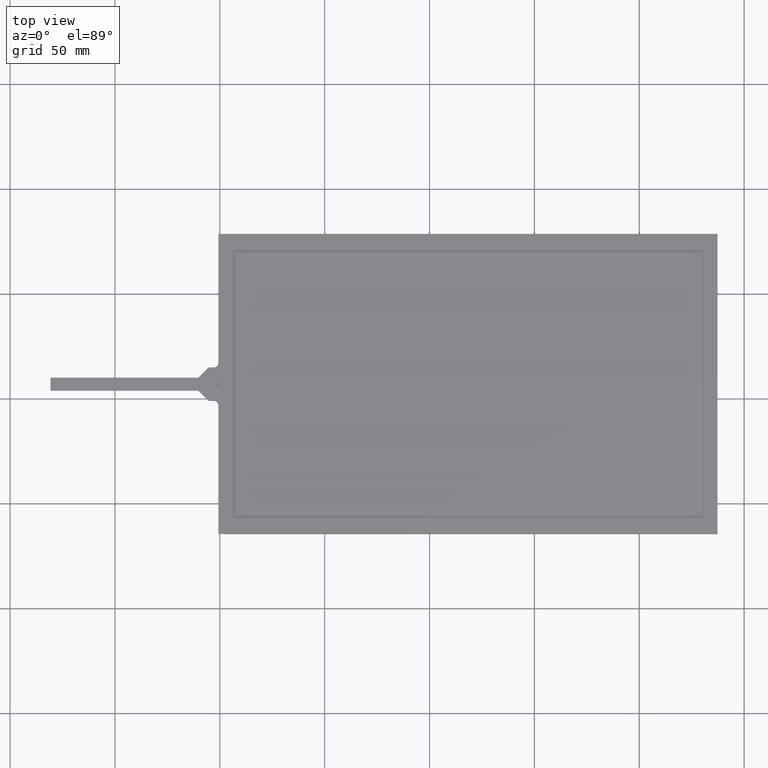
[diagram: clean part render]
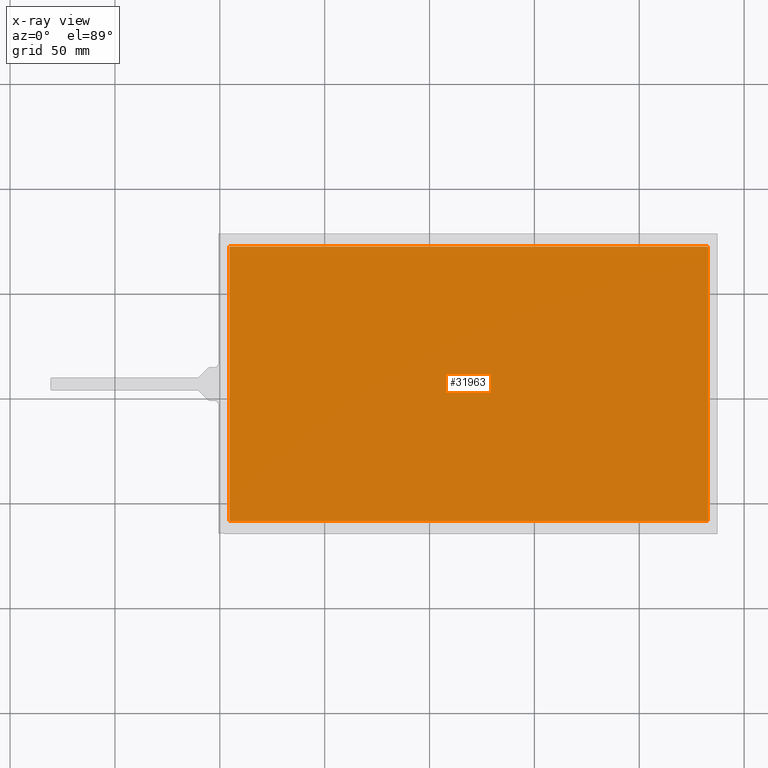
[diagram: x-ray — body ghosted, one internal face saturated and labeled with its STEP entity id]
A machine part, top view, then the same camera in x-ray: the body is ghosted and one INTERNAL B-rep face — a face not visible from any outside direction — is saturated and labeled: STEP entity #31963.
In plain terms, the highlighted planar face has unit normal (0, 0, -1).
Its self-contained STEP definition (entity closure, byte-faithful):
#1930=FACE_OUTER_BOUND('',#3604,.T.);
#3604=EDGE_LOOP('',(#21139,#21140,#21141,#21142));
#5450=LINE('',#45850,#9178);
#5451=LINE('',#45852,#9179);
#5452=LINE('',#45854,#9180);
#5453=LINE('',#45855,#9181);
#9178=VECTOR('',#36537,10.);
#9179=VECTOR('',#36538,10.);
#9180=VECTOR('',#36539,10.);
#9181=VECTOR('',#36540,10.);
#12884=VERTEX_POINT('',#45848);
#12885=VERTEX_POINT('',#45849);
#12886=VERTEX_POINT('',#45851);
#12887=VERTEX_POINT('',#45853);
#16159=EDGE_CURVE('',#12884,#12885,#5450,.T.);
#16160=EDGE_CURVE('',#12885,#12886,#5451,.T.);
#16161=EDGE_CURVE('',#12886,#12887,#5452,.T.);
#16162=EDGE_CURVE('',#12887,#12884,#5453,.T.);
#21139=ORIENTED_EDGE('',*,*,#16159,.T.);
#21140=ORIENTED_EDGE('',*,*,#16160,.T.);
#21141=ORIENTED_EDGE('',*,*,#16161,.T.);
#21142=ORIENTED_EDGE('',*,*,#16162,.T.);
#30858=PLANE('',#33655);
#31963=ADVANCED_FACE('',(#1930),#30858,.T.);
#33655=AXIS2_PLACEMENT_3D('',#45847,#36535,#36536);
#36535=DIRECTION('center_axis',(7.85439421835399E-15,4.56322426788113E-17,
-1.));
#36536=DIRECTION('ref_axis',(-1.,-4.19803081187858E-16,-7.85439421835399E-15));
#36537=DIRECTION('',(-1.,-4.19803081187858E-16,-7.85439421835399E-15));
#36538=DIRECTION('',(-2.87040985567511E-16,1.,4.56322426788091E-17));
#36539=DIRECTION('',(1.,2.65337269066097E-16,7.85439421835399E-15));
#36540=DIRECTION('',(4.19803081187858E-16,-1.,-4.5632242678808E-17));
#45847=CARTESIAN_POINT('Origin',(-281.714560013878,57.0235801873654,-85.4470944214063));
#45848=CARTESIAN_POINT('',(-167.214560013878,-8.47641981263457,-85.4470944214054));
#45849=CARTESIAN_POINT('',(-395.414560013878,-8.47641981263466,-85.4470944214072));
#45850=CARTESIAN_POINT('',(-339.464560013878,-8.47641981263465,-85.4470944214068));
#45851=CARTESIAN_POINT('',(-395.414560013878,122.523580187365,-85.4470944214072));
#45852=CARTESIAN_POINT('',(-395.414560013878,91.1735801873654,-85.4470944214072));
#45853=CARTESIAN_POINT('',(-167.214560013878,122.523580187365,-85.4470944214054));
#45854=CARTESIAN_POINT('',(-223.564560013878,122.523580187365,-85.4470944214059));
#45855=CARTESIAN_POINT('',(-167.214560013878,22.8735801873654,-85.4470944214054));